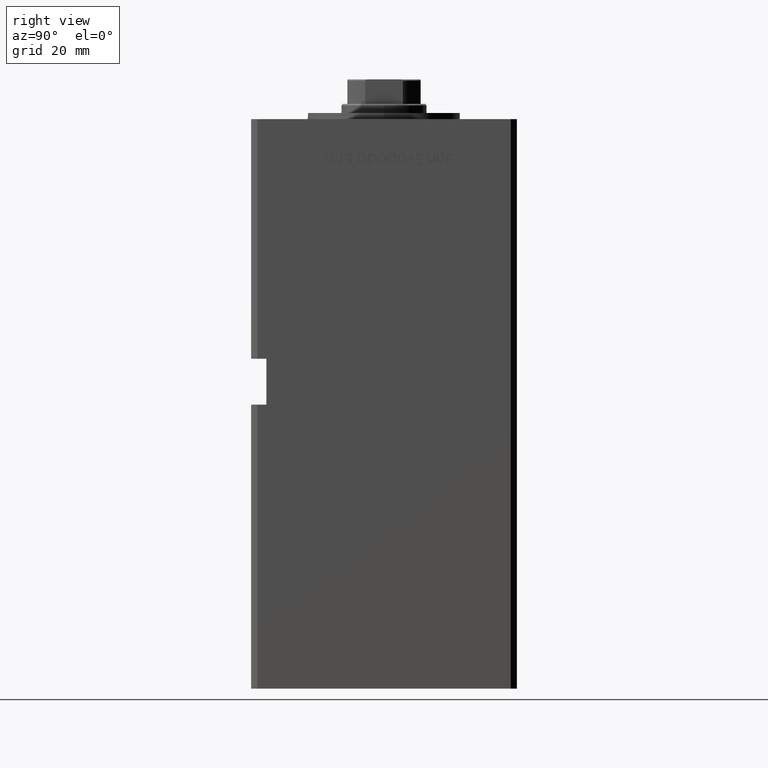
[diagram: clean part render]
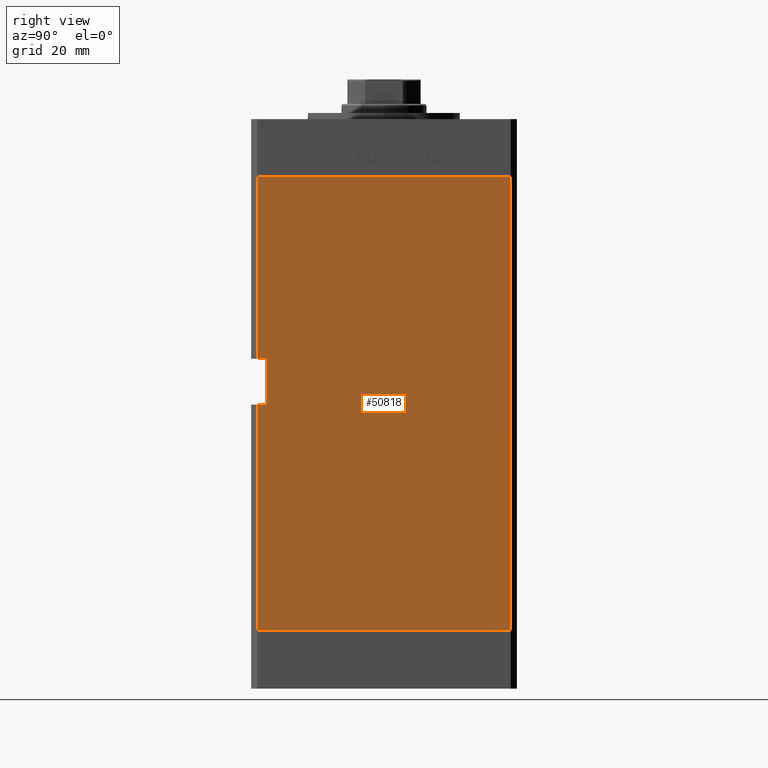
[diagram: same view with one face highlighted and labeled with its STEP entity id]
A machine part, right view. The second image highlights one B-rep face of the part: STEP entity #50818.
In plain terms, the highlighted planar face has unit normal (1, -0, 0).
Its self-contained STEP definition (entity closure, byte-faithful):
#358 = CARTESIAN_POINT ( 'NONE',  ( 50.00000000000001421, 41.49999999999999289, 148.5000000000000000 ) ) ;
#4121 = EDGE_CURVE ( 'NONE', #30072, #44773, #48512, .T. ) ;
#4131 = EDGE_CURVE ( 'NONE', #52014, #11548, #15953, .T. ) ;
#4149 = VECTOR ( 'NONE', #15947, 1000.000000000000000 ) ;
#4628 = VECTOR ( 'NONE', #40104, 1000.000000000000000 ) ;
#6905 = EDGE_CURVE ( 'NONE', #32406, #44773, #22543, .T. ) ;
#8097 = CARTESIAN_POINT ( 'NONE',  ( 49.99999999999998579, -41.49999999999999289, 89.00000000000000000 ) ) ;
#8943 = CARTESIAN_POINT ( 'NONE',  ( 50.00000000000001421, 41.49999999999999289, 148.5000000000000000 ) ) ;
#10040 = LINE ( 'NONE', #26434, #31881 ) ;
#11548 = VERTEX_POINT ( 'NONE', #37239 ) ;
#12457 = DIRECTION ( 'NONE',  ( -3.344045254895050973E-16, -1.000000000000000000, 0.000000000000000000 ) ) ;
#12719 = ORIENTED_EDGE ( 'NONE', *, *, #6905, .T. ) ;
#12987 = LINE ( 'NONE', #358, #35142 ) ;
#14023 = CARTESIAN_POINT ( 'NONE',  ( 50.00000000000001421, 41.49999999999999289, 0.000000000000000000 ) ) ;
#14064 = VECTOR ( 'NONE', #12457, 1000.000000000000000 ) ;
#15947 = DIRECTION ( 'NONE',  ( -0.000000000000000000, -1.000000000000000000, -0.000000000000000000 ) ) ;
#15953 = LINE ( 'NONE', #28846, #47570 ) ;
#16402 = CARTESIAN_POINT ( 'NONE',  ( 49.99999999999998579, -41.49999999999999289, 0.000000000000000000 ) ) ;
#16474 = CARTESIAN_POINT ( 'NONE',  ( 50.00000000000001421, 41.49999999999999289, 0.000000000000000000 ) ) ;
#16606 = EDGE_CURVE ( 'NONE', #11548, #49931, #30529, .T. ) ;
#16807 = VERTEX_POINT ( 'NONE', #8943 ) ;
#18005 = CARTESIAN_POINT ( 'NONE',  ( 49.99999999999998579, -38.49999999999999289, 74.00000000000000000 ) ) ;
#20238 = VERTEX_POINT ( 'NONE', #43553 ) ;
#21177 = EDGE_CURVE ( 'NONE', #16807, #30072, #39311, .T. ) ;
#22543 = LINE ( 'NONE', #26841, #46783 ) ;
#23699 = CARTESIAN_POINT ( 'NONE',  ( 50.00000000000001421, 41.49999999999999289, 148.5000000000000000 ) ) ;
#23890 = ORIENTED_EDGE ( 'NONE', *, *, #4121, .F. ) ;
#24132 = ORIENTED_EDGE ( 'NONE', *, *, #16606, .F. ) ;
#24293 = LINE ( 'NONE', #27566, #46835 ) ;
#25026 = CARTESIAN_POINT ( 'NONE',  ( 50.00000000000001421, 41.49999999999999289, 148.5000000000000000 ) ) ;
#25297 = FACE_OUTER_BOUND ( 'NONE', #46304, .T. ) ;
#26042 = EDGE_CURVE ( 'NONE', #20238, #49931, #24293, .T. ) ;
#26434 = CARTESIAN_POINT ( 'NONE',  ( 49.99999999999998579, -38.50000000000000000, 74.00000000000000000 ) ) ;
#26841 = CARTESIAN_POINT ( 'NONE',  ( 49.99999999999998579, -41.49999999999999289, 148.5000000000000000 ) ) ;
#27566 = CARTESIAN_POINT ( 'NONE',  ( 49.99999999999998579, -41.49999999999999289, 148.5000000000000000 ) ) ;
#28339 = DIRECTION ( 'NONE',  ( -0.000000000000000000, -0.000000000000000000, -1.000000000000000000 ) ) ;
#28846 = CARTESIAN_POINT ( 'NONE',  ( 49.99999999999998579, -38.50000000000000000, 89.00000000000000000 ) ) ;
#30072 = VERTEX_POINT ( 'NONE', #14023 ) ;
#30529 = LINE ( 'NONE', #50424, #4149 ) ;
#31691 = ORIENTED_EDGE ( 'NONE', *, *, #21177, .F. ) ;
#31812 = ORIENTED_EDGE ( 'NONE', *, *, #41125, .T. ) ;
#31881 = VECTOR ( 'NONE', #42842, 1000.000000000000000 ) ;
#32406 = VERTEX_POINT ( 'NONE', #47978 ) ;
#33681 = DIRECTION ( 'NONE',  ( -3.344045254895050973E-16, -1.000000000000000000, 0.000000000000000000 ) ) ;
#35142 = VECTOR ( 'NONE', #33681, 1000.000000000000000 ) ;
#36027 = ORIENTED_EDGE ( 'NONE', *, *, #46669, .T. ) ;
#37239 = CARTESIAN_POINT ( 'NONE',  ( 49.99999999999998579, -38.50000000000000000, 89.00000000000000000 ) ) ;
#37670 = DIRECTION ( 'NONE',  ( 3.344045254895050480E-16, 1.000000000000000000, 0.000000000000000000 ) ) ;
#39311 = LINE ( 'NONE', #23699, #4628 ) ;
#40104 = DIRECTION ( 'NONE',  ( -0.000000000000000000, -0.000000000000000000, -1.000000000000000000 ) ) ;
#41125 = EDGE_CURVE ( 'NONE', #16807, #20238, #12987, .T. ) ;
#41528 = ORIENTED_EDGE ( 'NONE', *, *, #26042, .T. ) ;
#41709 = DIRECTION ( 'NONE',  ( 1.000000000000000000, -3.344045254895050480E-16, 0.000000000000000000 ) ) ;
#42195 = AXIS2_PLACEMENT_3D ( 'NONE', #25026, #41709, #37670 ) ;
#42842 = DIRECTION ( 'NONE',  ( -0.000000000000000000, -1.000000000000000000, -0.000000000000000000 ) ) ;
#43518 = DIRECTION ( 'NONE',  ( -0.000000000000000000, -0.000000000000000000, -1.000000000000000000 ) ) ;
#43553 = CARTESIAN_POINT ( 'NONE',  ( 49.99999999999998579, -41.49999999999999289, 148.5000000000000000 ) ) ;
#44732 = DIRECTION ( 'NONE',  ( -0.000000000000000000, -0.000000000000000000, 1.000000000000000000 ) ) ;
#44773 = VERTEX_POINT ( 'NONE', #16402 ) ;
#46019 = PLANE ( 'NONE',  #42195 ) ;
#46304 = EDGE_LOOP ( 'NONE', ( #36027, #12719, #23890, #31691, #31812, #41528, #24132, #51718 ) ) ;
#46669 = EDGE_CURVE ( 'NONE', #52014, #32406, #10040, .T. ) ;
#46783 = VECTOR ( 'NONE', #43518, 1000.000000000000000 ) ;
#46835 = VECTOR ( 'NONE', #28339, 1000.000000000000000 ) ;
#47570 = VECTOR ( 'NONE', #44732, 1000.000000000000000 ) ;
#47978 = CARTESIAN_POINT ( 'NONE',  ( 49.99999999999998579, -41.49999999999999289, 74.00000000000000000 ) ) ;
#48512 = LINE ( 'NONE', #16474, #14064 ) ;
#49931 = VERTEX_POINT ( 'NONE', #8097 ) ;
#50424 = CARTESIAN_POINT ( 'NONE',  ( 49.99999999999998579, -38.50000000000000000, 89.00000000000000000 ) ) ;
#50818 = ADVANCED_FACE ( 'NONE', ( #25297 ), #46019, .T. ) ;
#51718 = ORIENTED_EDGE ( 'NONE', *, *, #4131, .F. ) ;
#52014 = VERTEX_POINT ( 'NONE', #18005 ) ;